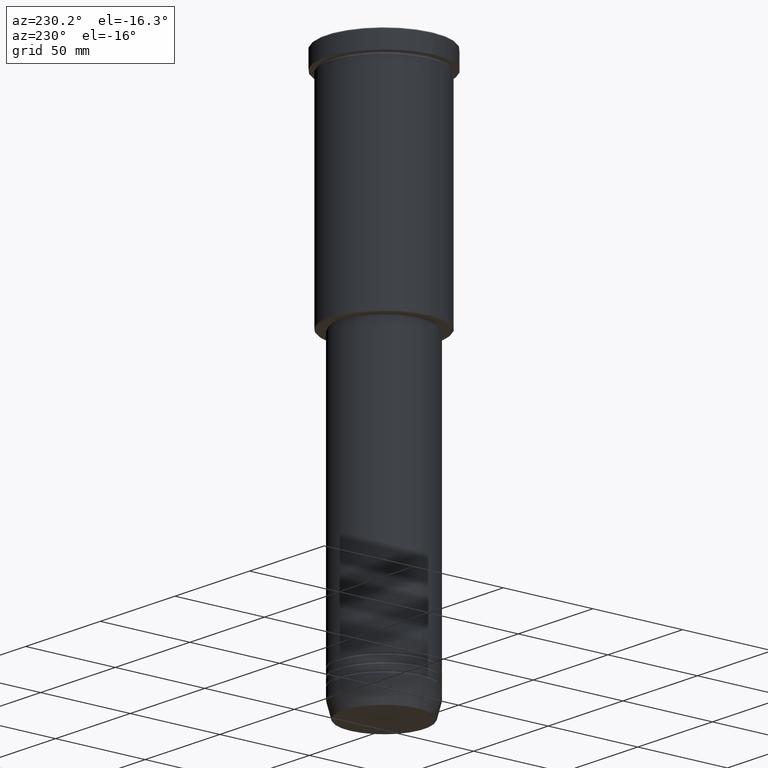
[diagram: clean part render]
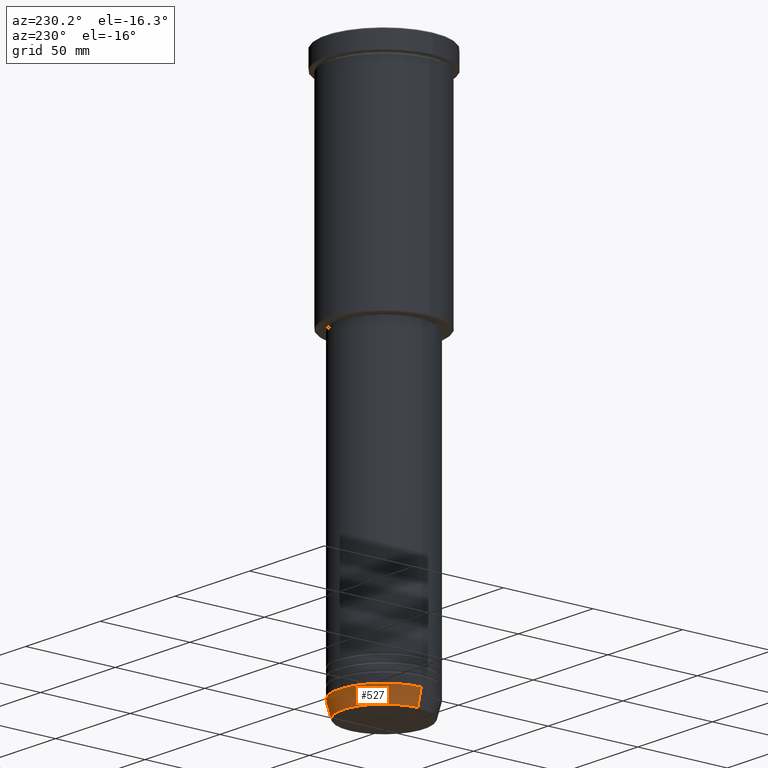
[diagram: same view with one face highlighted and labeled with its STEP entity id]
A machine part, auxiliary view. The second image highlights one B-rep face of the part: STEP entity #527.
In plain terms, the highlighted conical surface has half-angle 15 deg.
Its self-contained STEP definition (entity closure, byte-faithful):
#33 = CARTESIAN_POINT ( 'NONE',  ( -25.00000000000000000, 3.061616997868383043E-15, -291.0000000000000000 ) ) ;
#34 = AXIS2_PLACEMENT_3D ( 'NONE', #750, #397, #765 ) ;
#55 = CARTESIAN_POINT ( 'NONE',  ( 22.68775668727494477, 0.000000000000000000, -299.6294095225512137 ) ) ;
#61 = VERTEX_POINT ( 'NONE', #722 ) ;
#65 = AXIS2_PLACEMENT_3D ( 'NONE', #523, #159, #894 ) ;
#70 = CONICAL_SURFACE ( 'NONE', #65, 25.00000000000000000, 0.2617993877991502960 ) ;
#97 = DIRECTION ( 'NONE',  ( -0.000000000000000000, -0.000000000000000000, 1.000000000000000000 ) ) ;
#159 = DIRECTION ( 'NONE',  ( -0.000000000000000000, -0.000000000000000000, 1.000000000000000000 ) ) ;
#173 = EDGE_CURVE ( 'NONE', #466, #991, #298, .T. ) ;
#228 = DIRECTION ( 'NONE',  ( -0.2588190451025215166, 3.169619151431774802E-17, 0.9659258262890679791 ) ) ;
#261 = EDGE_CURVE ( 'NONE', #974, #61, #1017, .T. ) ;
#298 = CIRCLE ( 'NONE', #34, 25.00000000000000000 ) ;
#299 = LINE ( 'NONE', #1041, #814 ) ;
#342 = FACE_OUTER_BOUND ( 'NONE', #618, .T. ) ;
#344 = EDGE_CURVE ( 'NONE', #974, #466, #1180, .T. ) ;
#360 = VECTOR ( 'NONE', #1165, 1000.000000000000114 ) ;
#397 = DIRECTION ( 'NONE',  ( -0.000000000000000000, -0.000000000000000000, 1.000000000000000000 ) ) ;
#430 = ORIENTED_EDGE ( 'NONE', *, *, #261, .T. ) ;
#441 = ORIENTED_EDGE ( 'NONE', *, *, #957, .T. ) ;
#458 = DIRECTION ( 'NONE',  ( 1.000000000000000000, 0.000000000000000000, 0.000000000000000000 ) ) ;
#466 = VERTEX_POINT ( 'NONE', #669 ) ;
#523 = CARTESIAN_POINT ( 'NONE',  ( 0.000000000000000000, 0.000000000000000000, -291.0000000000000000 ) ) ;
#527 = ADVANCED_FACE ( 'NONE', ( #342 ), #70, .T. ) ;
#550 = CARTESIAN_POINT ( 'NONE',  ( 25.00000000000000000, 0.000000000000000000, -291.0000000000000000 ) ) ;
#618 = EDGE_LOOP ( 'NONE', ( #430, #441, #1121, #784 ) ) ;
#669 = CARTESIAN_POINT ( 'NONE',  ( 25.00000000000000000, 0.000000000000000000, -291.0000000000000000 ) ) ;
#722 = CARTESIAN_POINT ( 'NONE',  ( -22.68775668727494477, 2.920032929279452581E-15, -299.6294095225512137 ) ) ;
#750 = CARTESIAN_POINT ( 'NONE',  ( 0.000000000000000000, 0.000000000000000000, -291.0000000000000000 ) ) ;
#765 = DIRECTION ( 'NONE',  ( 1.000000000000000000, 0.000000000000000000, 0.000000000000000000 ) ) ;
#784 = ORIENTED_EDGE ( 'NONE', *, *, #344, .F. ) ;
#814 = VECTOR ( 'NONE', #228, 1000.000000000000114 ) ;
#829 = CARTESIAN_POINT ( 'NONE',  ( 0.000000000000000000, 0.000000000000000000, -299.6294095225512137 ) ) ;
#894 = DIRECTION ( 'NONE',  ( 1.000000000000000000, 0.000000000000000000, 0.000000000000000000 ) ) ;
#957 = EDGE_CURVE ( 'NONE', #61, #991, #299, .T. ) ;
#974 = VERTEX_POINT ( 'NONE', #55 ) ;
#991 = VERTEX_POINT ( 'NONE', #33 ) ;
#1017 = CIRCLE ( 'NONE', #1098, 22.68775668727494477 ) ;
#1041 = CARTESIAN_POINT ( 'NONE',  ( -25.00000000000000000, 3.061616997868383043E-15, -291.0000000000000000 ) ) ;
#1098 = AXIS2_PLACEMENT_3D ( 'NONE', #829, #97, #458 ) ;
#1121 = ORIENTED_EDGE ( 'NONE', *, *, #173, .F. ) ;
#1165 = DIRECTION ( 'NONE',  ( 0.2588190451025215166, 0.000000000000000000, 0.9659258262890679791 ) ) ;
#1180 = LINE ( 'NONE', #550, #360 ) ;